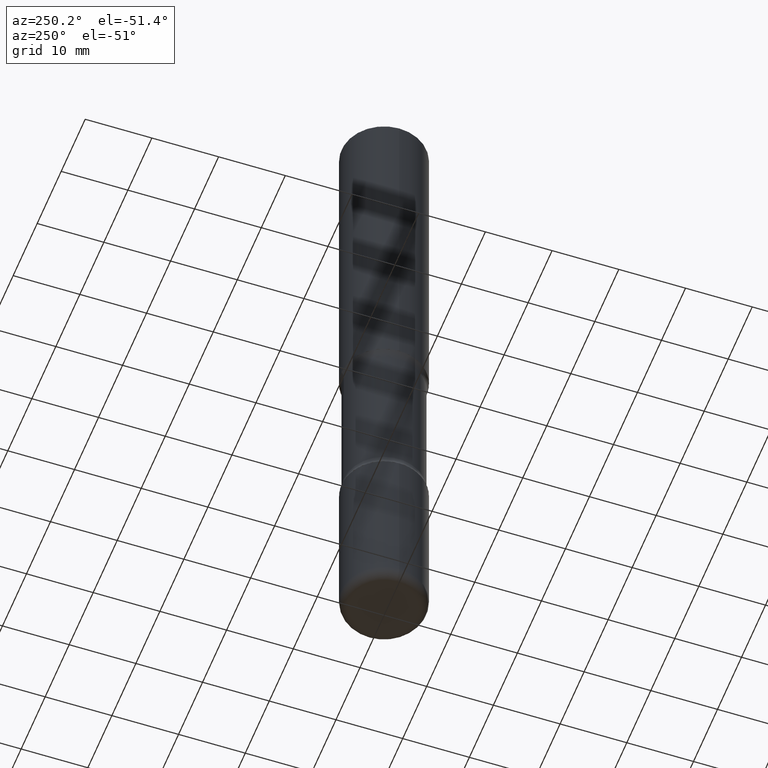
[diagram: clean part render]
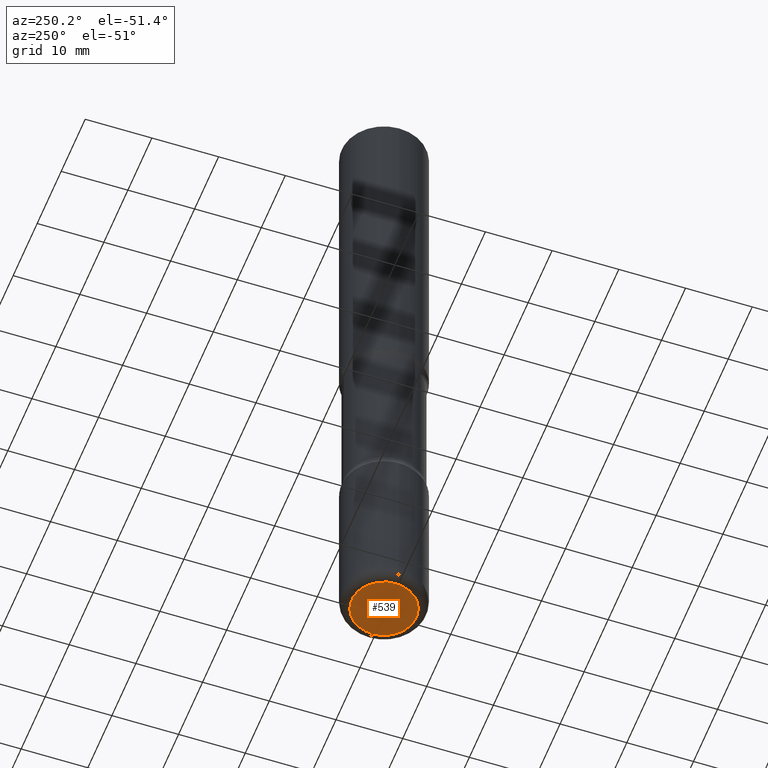
[diagram: same view with one face highlighted and labeled with its STEP entity id]
A machine part, auxiliary view. The second image highlights one B-rep face of the part: STEP entity #539.
In plain terms, the highlighted planar face has unit normal (0, -0, -1).
Its self-contained STEP definition (entity closure, byte-faithful):
#8 = DIRECTION ( 'NONE',  ( -2.445468806185136597E-29, 3.491481338843145583E-15, 1.000000000000000000 ) ) ;
#12 = CARTESIAN_POINT ( 'NONE',  ( 9.781875224740546387E-29, -1.396592535537258233E-14, -4.000000000000000000 ) ) ;
#61 = DIRECTION ( 'NONE',  ( 2.438088387897960049E-29, -3.491481338843145188E-15, -1.000000000000000000 ) ) ;
#64 = AXIS2_PLACEMENT_3D ( 'NONE', #394, #8, #92 ) ;
#92 = DIRECTION ( 'NONE',  ( 1.000000000000000000, -6.982962677686269077E-15, 0.000000000000000000 ) ) ;
#98 = CARTESIAN_POINT ( 'NONE',  ( -0.1900000000000003630, -1.229798689653506559E-14, -4.000000000000000000 ) ) ;
#105 = EDGE_CURVE ( 'NONE', #555, #522, #362, .T. ) ;
#118 = DIRECTION ( 'NONE',  ( -2.445468806185136597E-29, 3.491481338843145583E-15, 1.000000000000000000 ) ) ;
#177 = EDGE_LOOP ( 'NONE', ( #383, #336 ) ) ;
#180 = DIRECTION ( 'NONE',  ( -1.000000000000000000, 6.982962677686265922E-15, -4.876176775795935793E-29 ) ) ;
#195 = DIRECTION ( 'NONE',  ( 1.000000000000000000, -6.982962677686269077E-15, 0.000000000000000000 ) ) ;
#226 = CARTESIAN_POINT ( 'NONE',  ( 0.1900000000000003630, -1.529268826413297711E-14, -4.000000000000000000 ) ) ;
#284 = PLANE ( 'NONE',  #295 ) ;
#295 = AXIS2_PLACEMENT_3D ( 'NONE', #12, #61, #180 ) ;
#335 = EDGE_CURVE ( 'NONE', #522, #555, #349, .T. ) ;
#336 = ORIENTED_EDGE ( 'NONE', *, *, #105, .F. ) ;
#349 = CIRCLE ( 'NONE', #556, 0.1900000000000003630 ) ;
#362 = CIRCLE ( 'NONE', #64, 0.1900000000000003630 ) ;
#383 = ORIENTED_EDGE ( 'NONE', *, *, #335, .F. ) ;
#394 = CARTESIAN_POINT ( 'NONE',  ( 9.781875224740546387E-29, -1.396592535537258233E-14, -4.000000000000000000 ) ) ;
#409 = CARTESIAN_POINT ( 'NONE',  ( 9.781875224740546387E-29, -1.396592535537258233E-14, -4.000000000000000000 ) ) ;
#522 = VERTEX_POINT ( 'NONE', #226 ) ;
#523 = FACE_OUTER_BOUND ( 'NONE', #177, .T. ) ;
#539 = ADVANCED_FACE ( 'NONE', ( #523 ), #284, .T. ) ;
#555 = VERTEX_POINT ( 'NONE', #98 ) ;
#556 = AXIS2_PLACEMENT_3D ( 'NONE', #409, #118, #195 ) ;